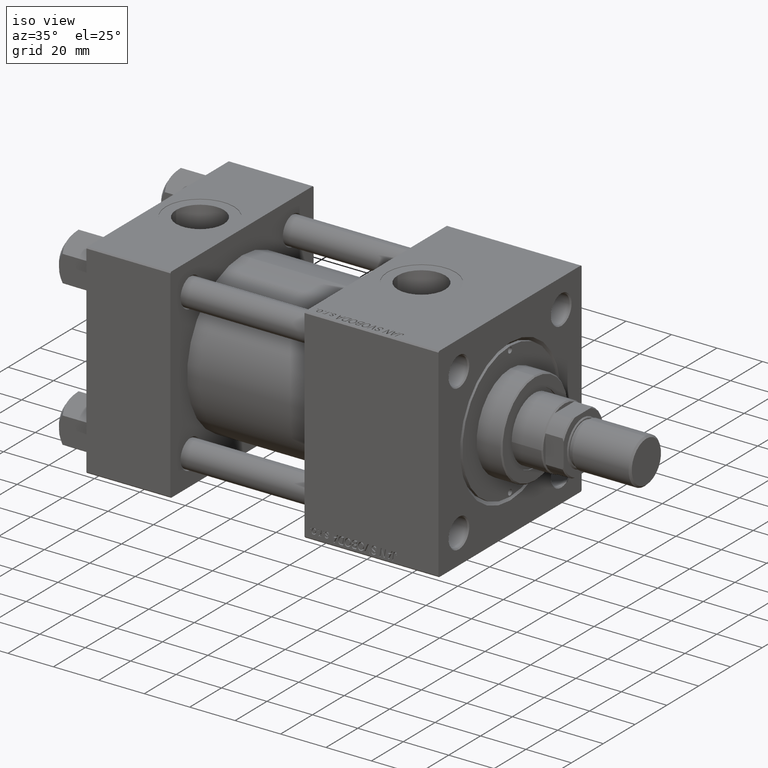
[diagram: clean part render]
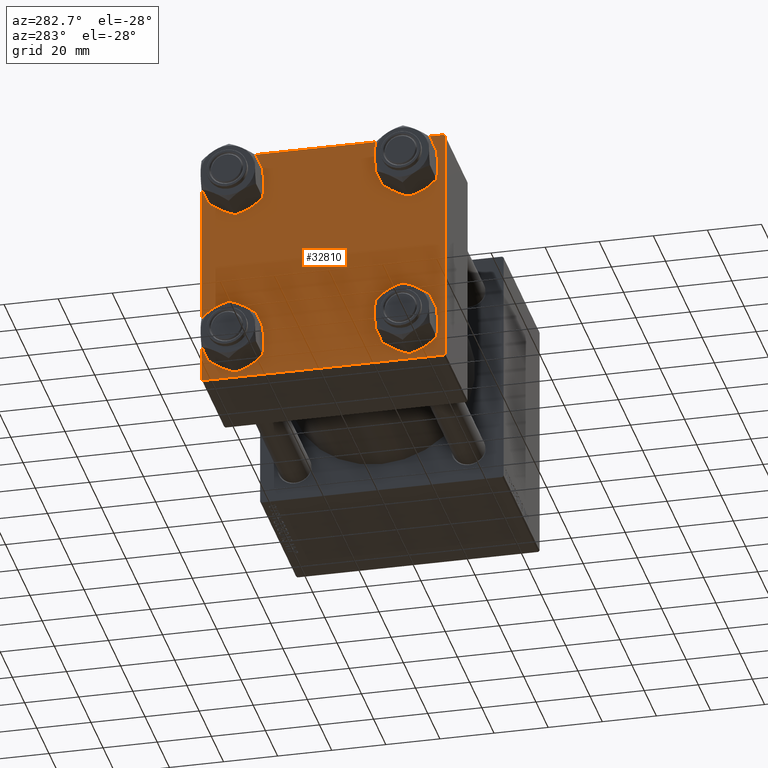
[diagram: tour spotlight — one face highlighted and labeled with its STEP entity id]
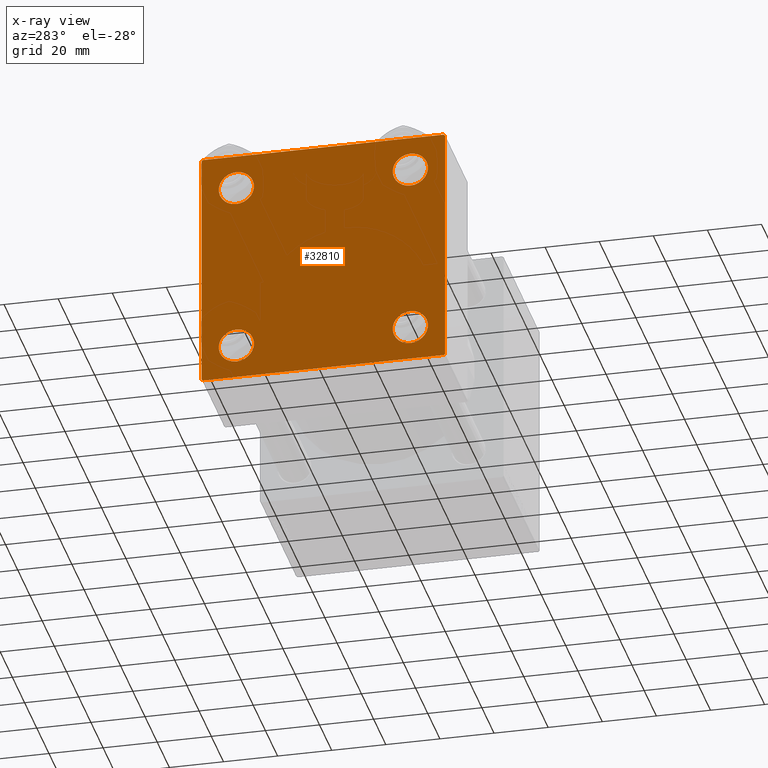
[diagram: x-ray of the same camera — body ghosted, this tour face saturated]
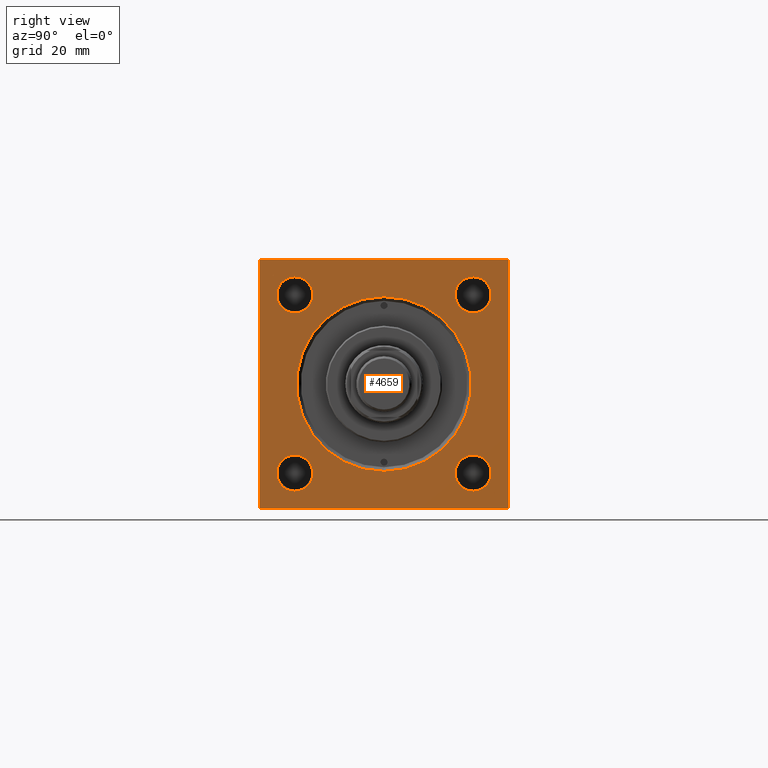
[diagram: tour spotlight — one face highlighted and labeled with its STEP entity id]
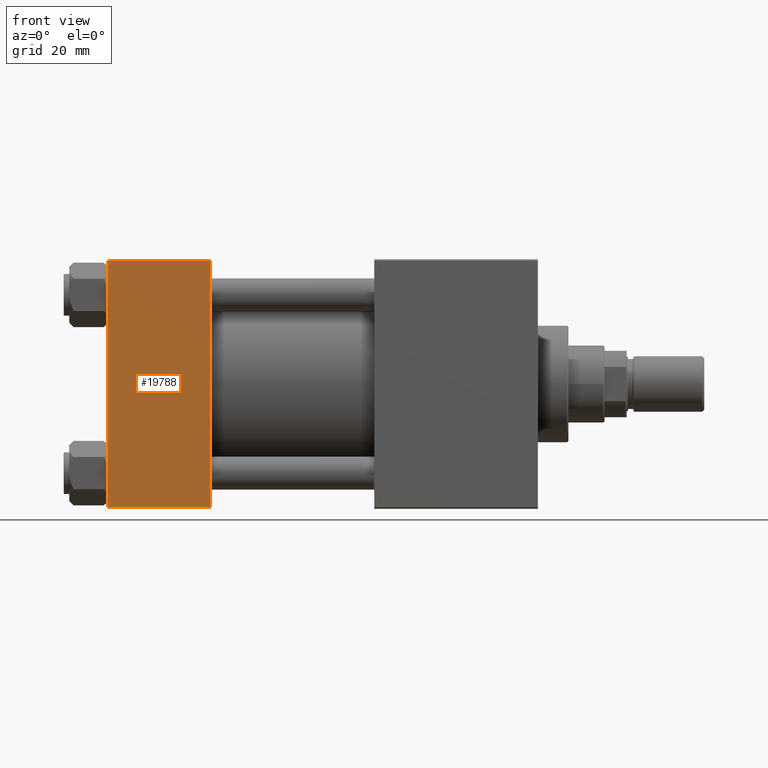
[diagram: tour spotlight — one face highlighted and labeled with its STEP entity id]
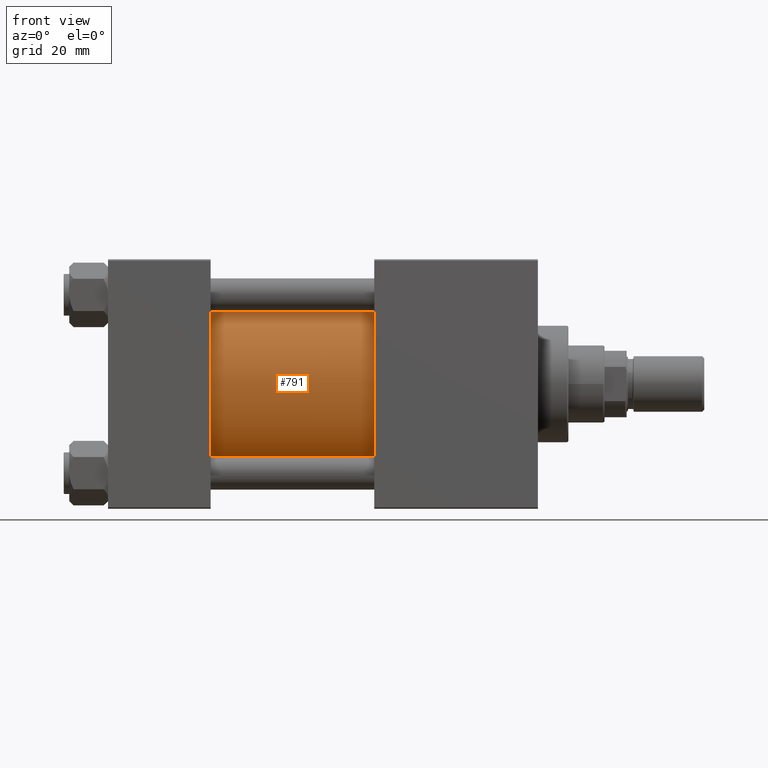
[diagram: tour spotlight — one face highlighted and labeled with its STEP entity id]
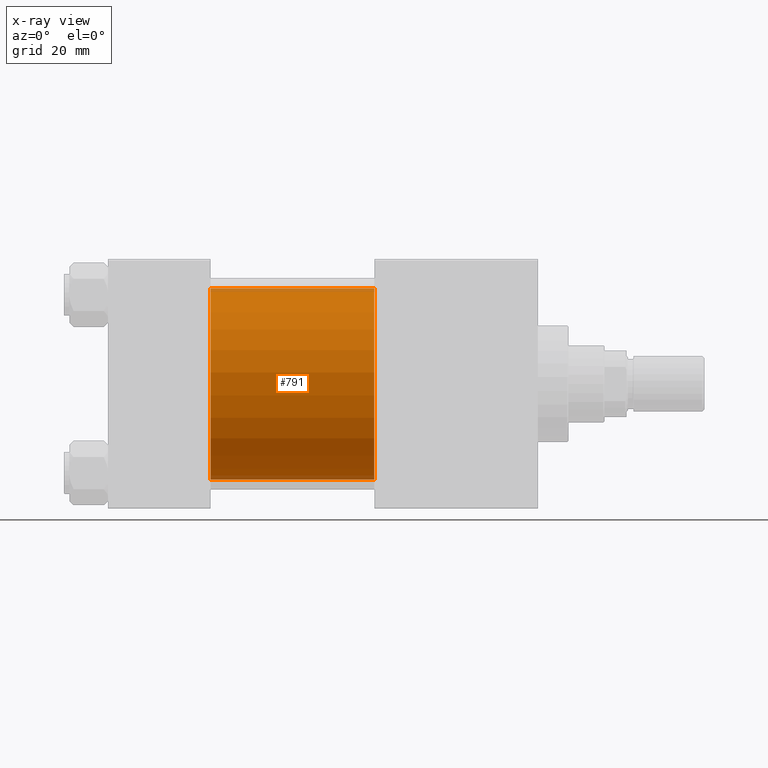
[diagram: x-ray of the same camera — body ghosted, this tour face saturated]
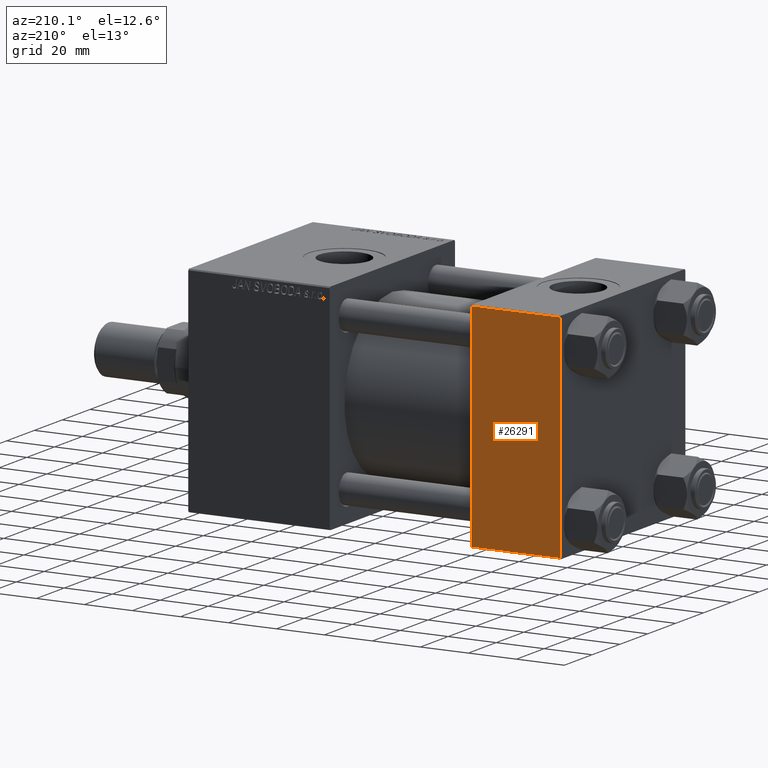
[diagram: tour spotlight — one face highlighted and labeled with its STEP entity id]
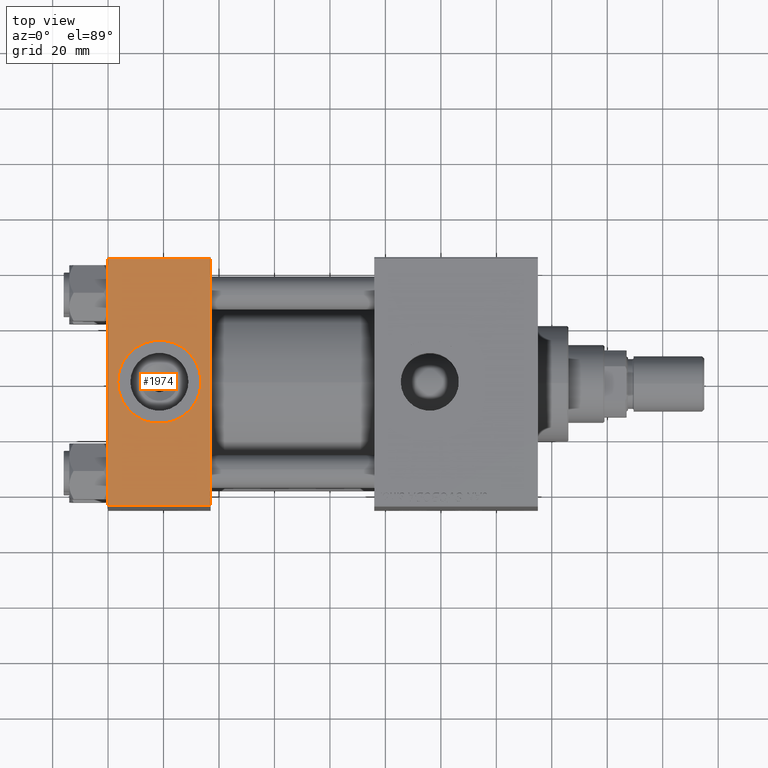
[diagram: tour spotlight — one face highlighted and labeled with its STEP entity id]
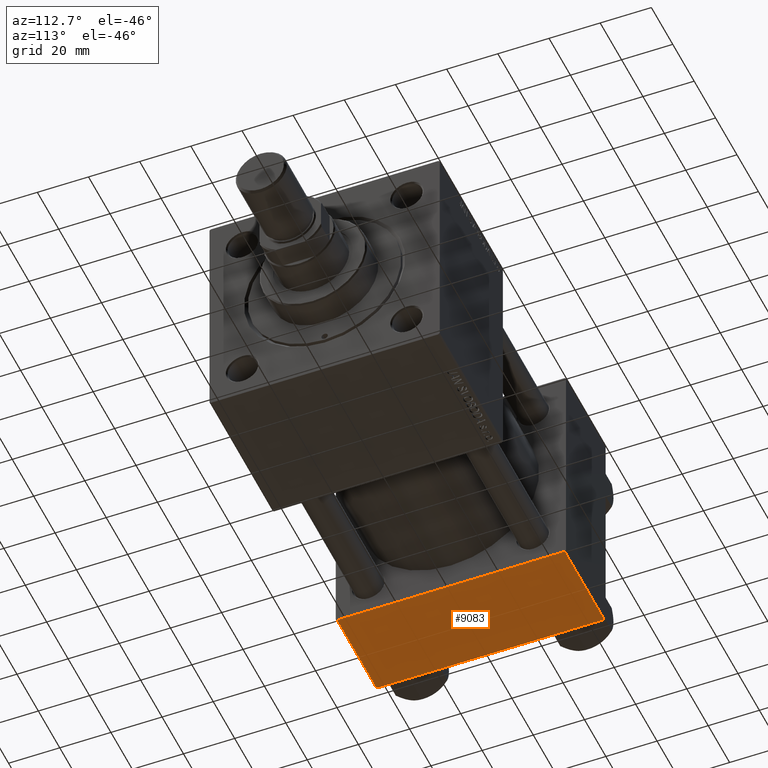
[diagram: tour spotlight — one face highlighted and labeled with its STEP entity id]
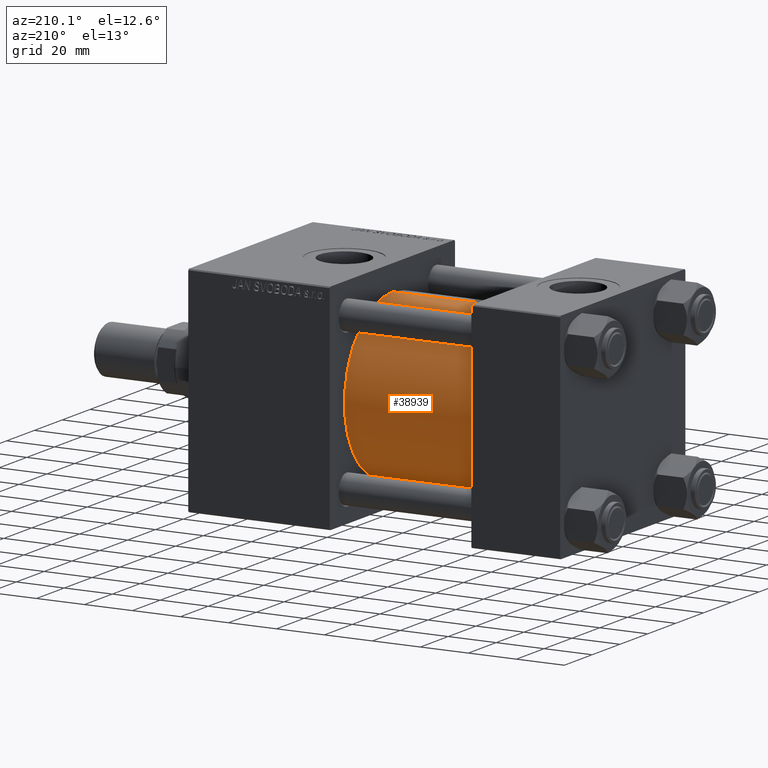
[diagram: tour spotlight — one face highlighted and labeled with its STEP entity id]
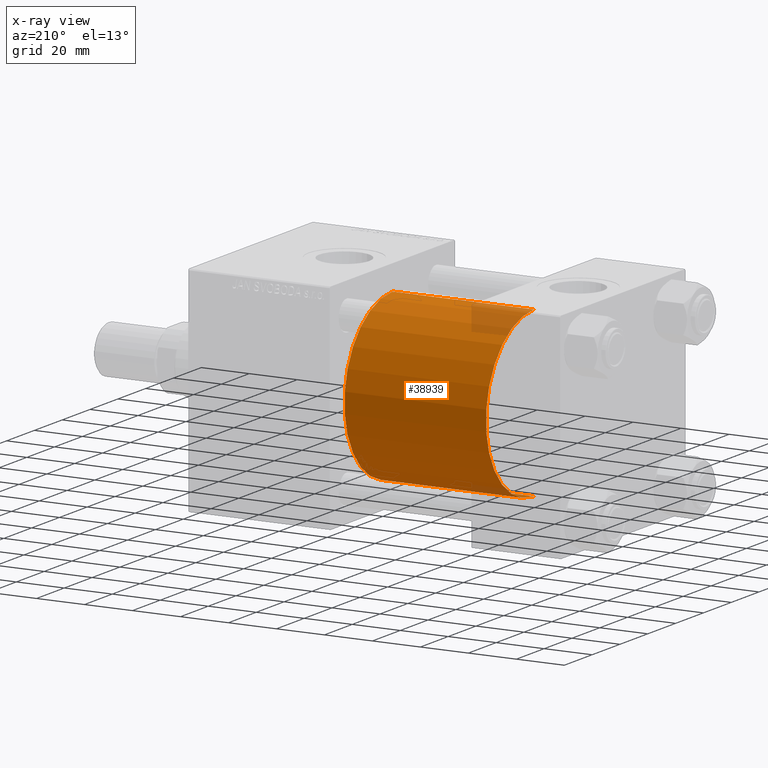
[diagram: x-ray of the same camera — body ghosted, this tour face saturated]
A machine part: a face-by-face anatomy tour. The part has 1168 B-rep faces; the first image is the clean iso view, then the 8 largest visible faces are spotlighted one at a time (largest first), each with its STEP entity span.

Face 1 — auxiliary view, entity #32810. An x-ray twin of the same camera follows (body ghosted, this face saturated) — the face is partly hidden behind the body. In plain terms, the highlighted planar face has unit normal (-1, 0, 0).
Definition (entity closure, byte-faithful):
#27 = ORIENTED_EDGE ( 'NONE', *, *, #29409, .T. ) ;
#38 = DIRECTION ( 'NONE',  ( 0.000000000000000000, 0.000000000000000000, -1.000000000000000000 ) ) ;
#129 = CARTESIAN_POINT ( 'NONE',  ( 0.000000000000000000, 44.99999999999998579, -44.99999999999998579 ) ) ;
#287 = VERTEX_POINT ( 'NONE', #47229 ) ;
#1167 = FACE_BOUND ( 'NONE', #5063, .T. ) ;
#1296 = CIRCLE ( 'NONE', #31675, 6.499999999999977796 ) ;
#1545 = ORIENTED_EDGE ( 'NONE', *, *, #6393, .T. ) ;
#1593 = LINE ( 'NONE', #129, #43041 ) ;
#1690 = CARTESIAN_POINT ( 'NONE',  ( 0.000000000000000000, 32.14999999999999147, -25.65000000000002700 ) ) ;
#2974 = AXIS2_PLACEMENT_3D ( 'NONE', #24626, #40280, #13578 ) ;
#3461 = DIRECTION ( 'NONE',  ( 0.000000000000000000, 0.000000000000000000, 1.000000000000000000 ) ) ;
#3672 = AXIS2_PLACEMENT_3D ( 'NONE', #21886, #11083, #34444 ) ;
#4027 = FACE_OUTER_BOUND ( 'NONE', #31901, .T. ) ;
#4085 = CARTESIAN_POINT ( 'NONE',  ( 0.000000000000000000, 44.99999999999998579, 45.00000000000001421 ) ) ;
#4376 = LINE ( 'NONE', #32103, #47152 ) ;
#4484 = ORIENTED_EDGE ( 'NONE', *, *, #37931, .F. ) ;
#4531 = FACE_BOUND ( 'NONE', #5034, .T. ) ;
#4672 = VERTEX_POINT ( 'NONE', #21368 ) ;
#5034 = EDGE_LOOP ( 'NONE', ( #29365, #15780 ) ) ;
#5063 = EDGE_LOOP ( 'NONE', ( #27, #24630 ) ) ;
#6275 = EDGE_CURVE ( 'NONE', #46807, #25527, #1593, .T. ) ;
#6393 = EDGE_CURVE ( 'NONE', #43069, #19581, #16088, .T. ) ;
#7778 = EDGE_CURVE ( 'NONE', #287, #4672, #4376, .T. ) ;
#7951 = DIRECTION ( 'NONE',  ( 0.000000000000000000, -1.000000000000000000, -1.541976423090495387E-16 ) ) ;
#8055 = CARTESIAN_POINT ( 'NONE',  ( 0.000000000000000000, 44.49999999999998579, -44.99999999999998579 ) ) ;
#8132 = DIRECTION ( 'NONE',  ( -0.000000000000000000, -0.7071067811865474617, -0.7071067811865474617 ) ) ;
#8133 = CARTESIAN_POINT ( 'NONE',  ( 0.000000000000000000, -32.14999999999997726, 38.65000000000003411 ) ) ;
#8184 = VECTOR ( 'NONE', #10699, 1000.000000000000114 ) ;
#8258 = DIRECTION ( 'NONE',  ( 0.000000000000000000, 7.709882115452476934E-17, -1.000000000000000000 ) ) ;
#9586 = CIRCLE ( 'NONE', #28473, 6.499999999999977796 ) ;
#9917 = DIRECTION ( 'NONE',  ( 1.000000000000000000, -0.000000000000000000, 0.000000000000000000 ) ) ;
#10699 = DIRECTION ( 'NONE',  ( 0.000000000000000000, -0.7071067811865474617, 0.7071067811865474617 ) ) ;
#11035 = CARTESIAN_POINT ( 'NONE',  ( 0.000000000000000000, -44.49999999999995737, 45.00000000000000000 ) ) ;
#11083 = DIRECTION ( 'NONE',  ( 1.000000000000000000, -0.000000000000000000, 0.000000000000000000 ) ) ;
#11262 = EDGE_CURVE ( 'NONE', #4672, #40364, #15483, .T. ) ;
#11624 = AXIS2_PLACEMENT_3D ( 'NONE', #24564, #47693, #11991 ) ;
#11804 = ORIENTED_EDGE ( 'NONE', *, *, #15340, .T. ) ;
#11991 = DIRECTION ( 'NONE',  ( -0.000000000000000000, 0.000000000000000000, 1.000000000000000000 ) ) ;
#12747 = FACE_BOUND ( 'NONE', #22995, .T. ) ;
#13264 = VERTEX_POINT ( 'NONE', #37093 ) ;
#13578 = DIRECTION ( 'NONE',  ( 0.000000000000000000, 0.000000000000000000, 1.000000000000000000 ) ) ;
#14294 = VERTEX_POINT ( 'NONE', #8133 ) ;
#14322 = DIRECTION ( 'NONE',  ( 0.000000000000000000, 0.000000000000000000, 1.000000000000000000 ) ) ;
#14373 = VECTOR ( 'NONE', #8132, 1000.000000000000114 ) ;
#15340 = EDGE_CURVE ( 'NONE', #17874, #50854, #9586, .T. ) ;
#15483 = LINE ( 'NONE', #23453, #22577 ) ;
#15780 = ORIENTED_EDGE ( 'NONE', *, *, #41004, .T. ) ;
#16088 = LINE ( 'NONE', #47180, #44659 ) ;
#16098 = CIRCLE ( 'NONE', #2974, 6.499999999999977796 ) ;
#17316 = DIRECTION ( 'NONE',  ( 1.000000000000000000, -0.000000000000000000, 0.000000000000000000 ) ) ;
#17579 = VECTOR ( 'NONE', #7951, 1000.000000000000000 ) ;
#17874 = VERTEX_POINT ( 'NONE', #1690 ) ;
#17990 = VERTEX_POINT ( 'NONE', #40231 ) ;
#19170 = CARTESIAN_POINT ( 'NONE',  ( 0.000000000000000000, 32.14999999999999147, 38.64999999999999147 ) ) ;
#19581 = VERTEX_POINT ( 'NONE', #11035 ) ;
#19589 = EDGE_CURVE ( 'NONE', #47688, #31968, #36061, .T. ) ;
#19705 = FACE_BOUND ( 'NONE', #35279, .T. ) ;
#19798 = ORIENTED_EDGE ( 'NONE', *, *, #24150, .T. ) ;
#20032 = CARTESIAN_POINT ( 'NONE',  ( 0.000000000000000000, 32.14999999999999147, -38.64999999999998437 ) ) ;
#20669 = CARTESIAN_POINT ( 'NONE',  ( 0.000000000000000000, -32.14999999999997726, 32.15000000000001279 ) ) ;
#20722 = PLANE ( 'NONE',  #11624 ) ;
#21368 = CARTESIAN_POINT ( 'NONE',  ( 0.000000000000000000, 44.99999999999998579, 44.50000000000001421 ) ) ;
#21501 = LINE ( 'NONE', #22008, #8184 ) ;
#21886 = CARTESIAN_POINT ( 'NONE',  ( 0.000000000000000000, 32.14999999999999147, 32.15000000000000568 ) ) ;
#22008 = CARTESIAN_POINT ( 'NONE',  ( 0.000000000000000000, -44.74999999999998579, -44.74999999999998579 ) ) ;
#22088 = DIRECTION ( 'NONE',  ( 0.000000000000000000, 0.000000000000000000, 1.000000000000000000 ) ) ;
#22250 = EDGE_CURVE ( 'NONE', #17990, #14294, #45826, .T. ) ;
#22577 = VECTOR ( 'NONE', #38, 1000.000000000000000 ) ;
#22995 = EDGE_LOOP ( 'NONE', ( #11804, #44505 ) ) ;
#23431 = CARTESIAN_POINT ( 'NONE',  ( 0.000000000000000000, -45.00000000000000711, 45.00000000000000000 ) ) ;
#23453 = CARTESIAN_POINT ( 'NONE',  ( 0.000000000000000000, 44.99999999999998579, 45.00000000000001421 ) ) ;
#24150 = EDGE_CURVE ( 'NONE', #25527, #13264, #21501, .T. ) ;
#24198 = CIRCLE ( 'NONE', #3672, 6.499999999999977796 ) ;
#24564 = CARTESIAN_POINT ( 'NONE',  ( 0.000000000000000000, 0.000000000000000000, 0.000000000000000000 ) ) ;
#24626 = CARTESIAN_POINT ( 'NONE',  ( 0.000000000000000000, 32.14999999999999147, -32.15000000000000568 ) ) ;
#24630 = ORIENTED_EDGE ( 'NONE', *, *, #22250, .T. ) ;
#24901 = VECTOR ( 'NONE', #8258, 1000.000000000000000 ) ;
#25527 = VERTEX_POINT ( 'NONE', #49668 ) ;
#26109 = CARTESIAN_POINT ( 'NONE',  ( 0.000000000000000000, -32.14999999999997726, -32.15000000000001279 ) ) ;
#26720 = DIRECTION ( 'NONE',  ( 1.000000000000000000, -0.000000000000000000, 0.000000000000000000 ) ) ;
#27024 = CARTESIAN_POINT ( 'NONE',  ( 0.000000000000000000, -32.14999999999997726, -32.15000000000001279 ) ) ;
#27660 = CARTESIAN_POINT ( 'NONE',  ( 0.000000000000000000, 44.74999999999998579, -44.74999999999998579 ) ) ;
#27744 = ORIENTED_EDGE ( 'NONE', *, *, #6275, .T. ) ;
#28473 = AXIS2_PLACEMENT_3D ( 'NONE', #30183, #38643, #3461 ) ;
#29101 = DIRECTION ( 'NONE',  ( -0.000000000000000000, 0.7071067811865425767, 0.7071067811865524577 ) ) ;
#29211 = CARTESIAN_POINT ( 'NONE',  ( 0.000000000000000000, 44.99999999999998579, -44.49999999999995737 ) ) ;
#29365 = ORIENTED_EDGE ( 'NONE', *, *, #19589, .T. ) ;
#29409 = EDGE_CURVE ( 'NONE', #14294, #17990, #29662, .T. ) ;
#29662 = CIRCLE ( 'NONE', #42800, 6.500000000000019540 ) ;
#30183 = CARTESIAN_POINT ( 'NONE',  ( 0.000000000000000000, 32.14999999999999147, -32.15000000000000568 ) ) ;
#31675 = AXIS2_PLACEMENT_3D ( 'NONE', #26109, #9917, #49992 ) ;
#31901 = EDGE_LOOP ( 'NONE', ( #40198, #47148, #27744, #19798, #4484, #1545, #35923, #48079 ) ) ;
#31968 = VERTEX_POINT ( 'NONE', #39153 ) ;
#32103 = CARTESIAN_POINT ( 'NONE',  ( 0.000000000000000000, 44.74999999999999289, 44.74999999999999289 ) ) ;
#32810 = ADVANCED_FACE ( 'NONE', ( #1167, #19705, #12747, #4531, #4027 ), #20722, .T. ) ;
#33391 = CARTESIAN_POINT ( 'NONE',  ( 0.000000000000000000, -32.14999999999997726, -38.64999999999999147 ) ) ;
#34444 = DIRECTION ( 'NONE',  ( 0.000000000000000000, 0.000000000000000000, 1.000000000000000000 ) ) ;
#34942 = EDGE_CURVE ( 'NONE', #49226, #40803, #38753, .T. ) ;
#35099 = DIRECTION ( 'NONE',  ( 0.000000000000000000, -1.000000000000000000, -1.541976423090495633E-16 ) ) ;
#35279 = EDGE_LOOP ( 'NONE', ( #36248, #48448 ) ) ;
#35454 = DIRECTION ( 'NONE',  ( 0.000000000000000000, 0.7071067811865474617, -0.7071067811865474617 ) ) ;
#35923 = ORIENTED_EDGE ( 'NONE', *, *, #38223, .F. ) ;
#36061 = CIRCLE ( 'NONE', #42643, 6.499999999999977796 ) ;
#36248 = ORIENTED_EDGE ( 'NONE', *, *, #44037, .T. ) ;
#36583 = DIRECTION ( 'NONE',  ( 0.000000000000000000, 0.000000000000000000, 1.000000000000000000 ) ) ;
#37093 = CARTESIAN_POINT ( 'NONE',  ( 0.000000000000000000, -45.00000000000000000, -44.49999999999995737 ) ) ;
#37931 = EDGE_CURVE ( 'NONE', #43069, #13264, #46304, .T. ) ;
#38049 = DIRECTION ( 'NONE',  ( 0.000000000000000000, 0.000000000000000000, 1.000000000000000000 ) ) ;
#38223 = EDGE_CURVE ( 'NONE', #287, #19581, #47254, .T. ) ;
#38259 = CARTESIAN_POINT ( 'NONE',  ( 0.000000000000000000, 32.14999999999999147, 32.15000000000000568 ) ) ;
#38643 = DIRECTION ( 'NONE',  ( 1.000000000000000000, -0.000000000000000000, 0.000000000000000000 ) ) ;
#38753 = CIRCLE ( 'NONE', #43676, 6.499999999999977796 ) ;
#39153 = CARTESIAN_POINT ( 'NONE',  ( 0.000000000000000000, 32.14999999999999147, 25.65000000000002700 ) ) ;
#40198 = ORIENTED_EDGE ( 'NONE', *, *, #11262, .T. ) ;
#40231 = CARTESIAN_POINT ( 'NONE',  ( 0.000000000000000000, -32.14999999999997726, 25.64999999999999147 ) ) ;
#40280 = DIRECTION ( 'NONE',  ( 1.000000000000000000, -0.000000000000000000, 0.000000000000000000 ) ) ;
#40364 = VERTEX_POINT ( 'NONE', #29211 ) ;
#40385 = CARTESIAN_POINT ( 'NONE',  ( 0.000000000000000000, -32.14999999999997726, -25.65000000000003411 ) ) ;
#40803 = VERTEX_POINT ( 'NONE', #40385 ) ;
#41004 = EDGE_CURVE ( 'NONE', #31968, #47688, #24198, .T. ) ;
#41040 = DIRECTION ( 'NONE',  ( 1.000000000000000000, -0.000000000000000000, 0.000000000000000000 ) ) ;
#41554 = CARTESIAN_POINT ( 'NONE',  ( 0.000000000000000000, -32.14999999999997726, 32.15000000000001279 ) ) ;
#41910 = DIRECTION ( 'NONE',  ( 1.000000000000000000, -0.000000000000000000, 0.000000000000000000 ) ) ;
#41958 = EDGE_CURVE ( 'NONE', #40364, #46807, #47680, .T. ) ;
#42556 = AXIS2_PLACEMENT_3D ( 'NONE', #20669, #17316, #36583 ) ;
#42643 = AXIS2_PLACEMENT_3D ( 'NONE', #38259, #26720, #22088 ) ;
#42800 = AXIS2_PLACEMENT_3D ( 'NONE', #41554, #41040, #14322 ) ;
#43041 = VECTOR ( 'NONE', #35099, 1000.000000000000000 ) ;
#43069 = VERTEX_POINT ( 'NONE', #43772 ) ;
#43619 = EDGE_CURVE ( 'NONE', #50854, #17874, #16098, .T. ) ;
#43676 = AXIS2_PLACEMENT_3D ( 'NONE', #27024, #41910, #38049 ) ;
#43772 = CARTESIAN_POINT ( 'NONE',  ( 0.000000000000000000, -45.00000000000000711, 44.49999999999997158 ) ) ;
#44037 = EDGE_CURVE ( 'NONE', #40803, #49226, #1296, .T. ) ;
#44505 = ORIENTED_EDGE ( 'NONE', *, *, #43619, .T. ) ;
#44659 = VECTOR ( 'NONE', #29101, 1000.000000000000114 ) ;
#45826 = CIRCLE ( 'NONE', #42556, 6.500000000000019540 ) ;
#46304 = LINE ( 'NONE', #23431, #24901 ) ;
#46807 = VERTEX_POINT ( 'NONE', #8055 ) ;
#47148 = ORIENTED_EDGE ( 'NONE', *, *, #41958, .T. ) ;
#47152 = VECTOR ( 'NONE', #35454, 1000.000000000000114 ) ;
#47180 = CARTESIAN_POINT ( 'NONE',  ( -0.000000000000000000, -44.75000000000029843, 44.74999999999967315 ) ) ;
#47229 = CARTESIAN_POINT ( 'NONE',  ( 0.000000000000000000, 44.49999999999998579, 45.00000000000001421 ) ) ;
#47254 = LINE ( 'NONE', #4085, #17579 ) ;
#47680 = LINE ( 'NONE', #27660, #14373 ) ;
#47688 = VERTEX_POINT ( 'NONE', #19170 ) ;
#47693 = DIRECTION ( 'NONE',  ( -1.000000000000000000, 0.000000000000000000, -0.000000000000000000 ) ) ;
#48079 = ORIENTED_EDGE ( 'NONE', *, *, #7778, .T. ) ;
#48448 = ORIENTED_EDGE ( 'NONE', *, *, #34942, .T. ) ;
#49226 = VERTEX_POINT ( 'NONE', #33391 ) ;
#49668 = CARTESIAN_POINT ( 'NONE',  ( 0.000000000000000000, -44.49999999999995737, -45.00000000000000000 ) ) ;
#49992 = DIRECTION ( 'NONE',  ( 0.000000000000000000, 0.000000000000000000, 1.000000000000000000 ) ) ;
#50854 = VERTEX_POINT ( 'NONE', #20032 ) ;

Face 2 — right view, entity #4659. In plain terms, the highlighted planar face has unit normal (-1, 0, 0).
Definition (entity closure, byte-faithful):
#563 = CIRCLE ( 'NONE', #3895, 6.500000000000033751 ) ;
#982 = EDGE_CURVE ( 'NONE', #44132, #43768, #8379, .T. ) ;
#1026 = VERTEX_POINT ( 'NONE', #1586 ) ;
#1180 = VERTEX_POINT ( 'NONE', #37173 ) ;
#1311 = AXIS2_PLACEMENT_3D ( 'NONE', #37119, #24558, #20713 ) ;
#1434 = DIRECTION ( 'NONE',  ( 0.000000000000000000, -1.000000000000000000, 0.000000000000000000 ) ) ;
#1492 = EDGE_LOOP ( 'NONE', ( #15028, #25881 ) ) ;
#1496 = VECTOR ( 'NONE', #1434, 1000.000000000000000 ) ;
#1586 = CARTESIAN_POINT ( 'NONE',  ( 155.0000000000000000, 32.14999999999999147, -38.65000000000004832 ) ) ;
#1784 = EDGE_CURVE ( 'NONE', #43768, #44132, #7588, .T. ) ;
#1818 = ORIENTED_EDGE ( 'NONE', *, *, #36235, .T. ) ;
#1828 = FACE_BOUND ( 'NONE', #28569, .T. ) ;
#1868 = VERTEX_POINT ( 'NONE', #13435 ) ;
#2584 = FACE_BOUND ( 'NONE', #19517, .T. ) ;
#2711 = VERTEX_POINT ( 'NONE', #44033 ) ;
#2754 = CARTESIAN_POINT ( 'NONE',  ( 155.0000000000000000, -44.99999999999999289, -44.49999999999991473 ) ) ;
#2768 = AXIS2_PLACEMENT_3D ( 'NONE', #30335, #22386, #45006 ) ;
#3170 = EDGE_CURVE ( 'NONE', #17636, #19933, #7711, .T. ) ;
#3693 = DIRECTION ( 'NONE',  ( 0.000000000000000000, 0.000000000000000000, -1.000000000000000000 ) ) ;
#3895 = AXIS2_PLACEMENT_3D ( 'NONE', #22235, #41763, #40990 ) ;
#3972 = CIRCLE ( 'NONE', #39210, 31.50000000000000000 ) ;
#4067 = LINE ( 'NONE', #12027, #16646 ) ;
#4372 = DIRECTION ( 'NONE',  ( 0.000000000000000000, 7.709882115452478166E-17, -1.000000000000000000 ) ) ;
#4659 = ADVANCED_FACE ( 'NONE', ( #2584, #10055, #25996, #1828, #33673, #22125 ), #25740, .F. ) ;
#4666 = VECTOR ( 'NONE', #40158, 1000.000000000000000 ) ;
#5467 = DIRECTION ( 'NONE',  ( 0.000000000000000000, 0.000000000000000000, 1.000000000000000000 ) ) ;
#5982 = CARTESIAN_POINT ( 'NONE',  ( 155.0000000000000000, -32.15000000000001279, -32.15000000000000568 ) ) ;
#6027 = CARTESIAN_POINT ( 'NONE',  ( 155.0000000000000000, -44.49999999999992895, -45.00000000000000000 ) ) ;
#6091 = CIRCLE ( 'NONE', #34789, 31.50000000000000000 ) ;
#6428 = CARTESIAN_POINT ( 'NONE',  ( 155.0000000000000000, 32.14999999999999147, 38.65000000000003411 ) ) ;
#6583 = EDGE_LOOP ( 'NONE', ( #27904, #20351 ) ) ;
#6954 = DIRECTION ( 'NONE',  ( 0.000000000000000000, 0.000000000000000000, 1.000000000000000000 ) ) ;
#7218 = DIRECTION ( 'NONE',  ( 0.000000000000000000, -0.7071067811865474617, 0.7071067811865474617 ) ) ;
#7471 = EDGE_CURVE ( 'NONE', #43026, #1026, #13515, .T. ) ;
#7588 = CIRCLE ( 'NONE', #13327, 6.500000000000033751 ) ;
#7679 = VERTEX_POINT ( 'NONE', #48903 ) ;
#7711 = LINE ( 'NONE', #35180, #21585 ) ;
#8379 = CIRCLE ( 'NONE', #8414, 6.500000000000033751 ) ;
#8414 = AXIS2_PLACEMENT_3D ( 'NONE', #33688, #49376, #5467 ) ;
#9399 = VERTEX_POINT ( 'NONE', #14805 ) ;
#9481 = CARTESIAN_POINT ( 'NONE',  ( 155.0000000000000000, 45.00000000000001421, 44.49999999999997158 ) ) ;
#9611 = ORIENTED_EDGE ( 'NONE', *, *, #3170, .T. ) ;
#9840 = ORIENTED_EDGE ( 'NONE', *, *, #7471, .T. ) ;
#10055 = FACE_BOUND ( 'NONE', #42501, .T. ) ;
#10757 = DIRECTION ( 'NONE',  ( 0.000000000000000000, 0.000000000000000000, 1.000000000000000000 ) ) ;
#10857 = VECTOR ( 'NONE', #3693, 1000.000000000000000 ) ;
#10985 = DIRECTION ( 'NONE',  ( 0.000000000000000000, 0.000000000000000000, 1.000000000000000000 ) ) ;
#11512 = CARTESIAN_POINT ( 'NONE',  ( 155.0000000000000000, 0.000000000000000000, 0.000000000000000000 ) ) ;
#11826 = LINE ( 'NONE', #39555, #46102 ) ;
#12027 = CARTESIAN_POINT ( 'NONE',  ( 155.0000000000000000, -45.00000000000000000, 44.49999999999995737 ) ) ;
#12284 = DIRECTION ( 'NONE',  ( -1.000000000000000000, -0.000000000000000000, -0.000000000000000000 ) ) ;
#13020 = LINE ( 'NONE', #24840, #39051 ) ;
#13327 = AXIS2_PLACEMENT_3D ( 'NONE', #5982, #21655, #17551 ) ;
#13435 = CARTESIAN_POINT ( 'NONE',  ( 155.0000000000000000, -45.00000000000000000, 44.49999999999995737 ) ) ;
#13515 = CIRCLE ( 'NONE', #45535, 6.500000000000033751 ) ;
#14209 = DIRECTION ( 'NONE',  ( -1.000000000000000000, -0.000000000000000000, -0.000000000000000000 ) ) ;
#14584 = DIRECTION ( 'NONE',  ( -1.000000000000000000, -0.000000000000000000, -0.000000000000000000 ) ) ;
#14805 = CARTESIAN_POINT ( 'NONE',  ( 155.0000000000000000, -44.49999999999994316, 44.99999999999998579 ) ) ;
#15028 = ORIENTED_EDGE ( 'NONE', *, *, #20660, .T. ) ;
#15180 = VECTOR ( 'NONE', #45324, 1000.000000000000000 ) ;
#15215 = EDGE_CURVE ( 'NONE', #29115, #2711, #23484, .T. ) ;
#15466 = EDGE_CURVE ( 'NONE', #19933, #9399, #44030, .T. ) ;
#16646 = VECTOR ( 'NONE', #27205, 1000.000000000000114 ) ;
#16811 = EDGE_CURVE ( 'NONE', #43600, #21992, #563, .T. ) ;
#16917 = CARTESIAN_POINT ( 'NONE',  ( 155.0000000000000000, 32.14999999999999147, 32.15000000000000568 ) ) ;
#17127 = ORIENTED_EDGE ( 'NONE', *, *, #33757, .T. ) ;
#17551 = DIRECTION ( 'NONE',  ( 0.000000000000000000, 0.000000000000000000, 1.000000000000000000 ) ) ;
#17636 = VERTEX_POINT ( 'NONE', #9481 ) ;
#19395 = ORIENTED_EDGE ( 'NONE', *, *, #21862, .F. ) ;
#19517 = EDGE_LOOP ( 'NONE', ( #41510, #50434 ) ) ;
#19933 = VERTEX_POINT ( 'NONE', #24495 ) ;
#20351 = ORIENTED_EDGE ( 'NONE', *, *, #1784, .T. ) ;
#20660 = EDGE_CURVE ( 'NONE', #7679, #50804, #3972, .T. ) ;
#20713 = DIRECTION ( 'NONE',  ( 0.000000000000000000, 0.000000000000000000, 1.000000000000000000 ) ) ;
#20913 = CARTESIAN_POINT ( 'NONE',  ( 155.0000000000000000, 45.00000000000001421, 45.00000000000000000 ) ) ;
#21378 = EDGE_CURVE ( 'NONE', #1026, #43026, #31833, .T. ) ;
#21585 = VECTOR ( 'NONE', #7218, 1000.000000000000114 ) ;
#21655 = DIRECTION ( 'NONE',  ( -1.000000000000000000, -0.000000000000000000, -0.000000000000000000 ) ) ;
#21862 = EDGE_CURVE ( 'NONE', #41804, #35817, #29195, .T. ) ;
#21992 = VERTEX_POINT ( 'NONE', #34304 ) ;
#22125 = FACE_OUTER_BOUND ( 'NONE', #24566, .T. ) ;
#22235 = CARTESIAN_POINT ( 'NONE',  ( 155.0000000000000000, -32.14999999999999147, 32.14999999999999147 ) ) ;
#22386 = DIRECTION ( 'NONE',  ( -1.000000000000000000, 0.000000000000000000, -0.000000000000000000 ) ) ;
#22871 = DIRECTION ( 'NONE',  ( -1.000000000000000000, -0.000000000000000000, -0.000000000000000000 ) ) ;
#23304 = CARTESIAN_POINT ( 'NONE',  ( 155.0000000000000000, 32.14999999999999147, -25.64999999999997016 ) ) ;
#23484 = CIRCLE ( 'NONE', #1311, 6.500000000000026645 ) ;
#23494 = CARTESIAN_POINT ( 'NONE',  ( 155.0000000000000000, 32.14999999999999147, -32.15000000000000568 ) ) ;
#24179 = ORIENTED_EDGE ( 'NONE', *, *, #15466, .T. ) ;
#24495 = CARTESIAN_POINT ( 'NONE',  ( 155.0000000000000000, 44.49999999999998579, 45.00000000000000000 ) ) ;
#24558 = DIRECTION ( 'NONE',  ( -1.000000000000000000, -0.000000000000000000, -0.000000000000000000 ) ) ;
#24566 = EDGE_LOOP ( 'NONE', ( #17127, #43466, #19395, #25485, #31201, #9611, #24179, #1818 ) ) ;
#24840 = CARTESIAN_POINT ( 'NONE',  ( 155.0000000000000000, 45.00000000000001421, -44.50000000000000000 ) ) ;
#25485 = ORIENTED_EDGE ( 'NONE', *, *, #44622, .T. ) ;
#25740 = PLANE ( 'NONE',  #2768 ) ;
#25881 = ORIENTED_EDGE ( 'NONE', *, *, #40203, .T. ) ;
#25907 = CARTESIAN_POINT ( 'NONE',  ( 155.0000000000000000, 0.000000000000000000, 0.000000000000000000 ) ) ;
#25996 = FACE_BOUND ( 'NONE', #6583, .T. ) ;
#26293 = CARTESIAN_POINT ( 'NONE',  ( 155.0000000000000000, -32.14999999999999147, 32.14999999999999147 ) ) ;
#26316 = EDGE_CURVE ( 'NONE', #21992, #43600, #43500, .T. ) ;
#26397 = CARTESIAN_POINT ( 'NONE',  ( 155.0000000000000000, 44.50000000000001421, -45.00000000000000000 ) ) ;
#26420 = CIRCLE ( 'NONE', #39522, 6.500000000000026645 ) ;
#27077 = LINE ( 'NONE', #42735, #10857 ) ;
#27205 = DIRECTION ( 'NONE',  ( -0.000000000000000000, -0.7071067811865474617, -0.7071067811865474617 ) ) ;
#27356 = DIRECTION ( 'NONE',  ( 0.000000000000000000, 0.000000000000000000, 1.000000000000000000 ) ) ;
#27904 = ORIENTED_EDGE ( 'NONE', *, *, #982, .T. ) ;
#28434 = CARTESIAN_POINT ( 'NONE',  ( 155.0000000000000000, 45.00000000000001421, -45.00000000000000000 ) ) ;
#28569 = EDGE_LOOP ( 'NONE', ( #36136, #9840 ) ) ;
#29115 = VERTEX_POINT ( 'NONE', #6428 ) ;
#29195 = LINE ( 'NONE', #28434, #1496 ) ;
#29304 = EDGE_CURVE ( 'NONE', #2711, #29115, #26420, .T. ) ;
#29387 = AXIS2_PLACEMENT_3D ( 'NONE', #46247, #22871, #6954 ) ;
#30335 = CARTESIAN_POINT ( 'NONE',  ( 155.0000000000000000, 0.000000000000000000, 0.000000000000000000 ) ) ;
#31201 = ORIENTED_EDGE ( 'NONE', *, *, #34653, .F. ) ;
#31833 = CIRCLE ( 'NONE', #29387, 6.500000000000033751 ) ;
#32007 = ORIENTED_EDGE ( 'NONE', *, *, #26316, .T. ) ;
#32333 = CARTESIAN_POINT ( 'NONE',  ( 155.0000000000000000, -32.14999999999999147, 38.65000000000002700 ) ) ;
#32950 = ORIENTED_EDGE ( 'NONE', *, *, #16811, .T. ) ;
#33673 = FACE_BOUND ( 'NONE', #1492, .T. ) ;
#33688 = CARTESIAN_POINT ( 'NONE',  ( 155.0000000000000000, -32.15000000000001279, -32.15000000000000568 ) ) ;
#33757 = EDGE_CURVE ( 'NONE', #1868, #41756, #11826, .T. ) ;
#34304 = CARTESIAN_POINT ( 'NONE',  ( 155.0000000000000000, -32.14999999999999147, 25.64999999999995595 ) ) ;
#34653 = EDGE_CURVE ( 'NONE', #17636, #1180, #27077, .T. ) ;
#34789 = AXIS2_PLACEMENT_3D ( 'NONE', #11512, #45959, #10757 ) ;
#35065 = CARTESIAN_POINT ( 'NONE',  ( 155.0000000000000000, -32.15000000000001279, -38.65000000000004832 ) ) ;
#35180 = CARTESIAN_POINT ( 'NONE',  ( 155.0000000000000000, 44.49999999999998579, 45.00000000000000000 ) ) ;
#35309 = AXIS2_PLACEMENT_3D ( 'NONE', #26293, #14209, #41946 ) ;
#35405 = DIRECTION ( 'NONE',  ( 0.000000000000000000, 0.000000000000000000, 1.000000000000000000 ) ) ;
#35795 = DIRECTION ( 'NONE',  ( -1.000000000000000000, -0.000000000000000000, -0.000000000000000000 ) ) ;
#35817 = VERTEX_POINT ( 'NONE', #50145 ) ;
#36136 = ORIENTED_EDGE ( 'NONE', *, *, #21378, .T. ) ;
#36235 = EDGE_CURVE ( 'NONE', #9399, #1868, #4067, .T. ) ;
#36648 = DIRECTION ( 'NONE',  ( -0.000000000000000000, 0.7071067811865474617, 0.7071067811865474617 ) ) ;
#37119 = CARTESIAN_POINT ( 'NONE',  ( 155.0000000000000000, 32.14999999999999147, 32.15000000000000568 ) ) ;
#37173 = CARTESIAN_POINT ( 'NONE',  ( 155.0000000000000000, 45.00000000000001421, -44.49999999999997158 ) ) ;
#38282 = CARTESIAN_POINT ( 'NONE',  ( 155.0000000000000000, 3.857637417314162689E-15, 31.50000000000000000 ) ) ;
#39051 = VECTOR ( 'NONE', #36648, 1000.000000000000114 ) ;
#39210 = AXIS2_PLACEMENT_3D ( 'NONE', #25907, #14584, #10985 ) ;
#39522 = AXIS2_PLACEMENT_3D ( 'NONE', #16917, #12284, #35405 ) ;
#39555 = CARTESIAN_POINT ( 'NONE',  ( 155.0000000000000000, -45.00000000000000000, 44.99999999999998579 ) ) ;
#40158 = DIRECTION ( 'NONE',  ( 0.000000000000000000, -1.000000000000000000, -1.541976423090495140E-16 ) ) ;
#40203 = EDGE_CURVE ( 'NONE', #50804, #7679, #6091, .T. ) ;
#40578 = EDGE_CURVE ( 'NONE', #41756, #35817, #41200, .T. ) ;
#40990 = DIRECTION ( 'NONE',  ( 0.000000000000000000, 0.000000000000000000, 1.000000000000000000 ) ) ;
#41200 = LINE ( 'NONE', #6027, #15180 ) ;
#41307 = CARTESIAN_POINT ( 'NONE',  ( 155.0000000000000000, -32.15000000000001279, -25.64999999999997016 ) ) ;
#41510 = ORIENTED_EDGE ( 'NONE', *, *, #29304, .T. ) ;
#41756 = VERTEX_POINT ( 'NONE', #2754 ) ;
#41763 = DIRECTION ( 'NONE',  ( -1.000000000000000000, -0.000000000000000000, -0.000000000000000000 ) ) ;
#41804 = VERTEX_POINT ( 'NONE', #26397 ) ;
#41946 = DIRECTION ( 'NONE',  ( 0.000000000000000000, 0.000000000000000000, 1.000000000000000000 ) ) ;
#42501 = EDGE_LOOP ( 'NONE', ( #32007, #32950 ) ) ;
#42735 = CARTESIAN_POINT ( 'NONE',  ( 155.0000000000000000, 45.00000000000001421, 45.00000000000000000 ) ) ;
#43026 = VERTEX_POINT ( 'NONE', #23304 ) ;
#43466 = ORIENTED_EDGE ( 'NONE', *, *, #40578, .T. ) ;
#43500 = CIRCLE ( 'NONE', #35309, 6.500000000000033751 ) ;
#43600 = VERTEX_POINT ( 'NONE', #32333 ) ;
#43768 = VERTEX_POINT ( 'NONE', #41307 ) ;
#44030 = LINE ( 'NONE', #20913, #4666 ) ;
#44033 = CARTESIAN_POINT ( 'NONE',  ( 155.0000000000000000, 32.14999999999999147, 25.64999999999997726 ) ) ;
#44132 = VERTEX_POINT ( 'NONE', #35065 ) ;
#44622 = EDGE_CURVE ( 'NONE', #41804, #1180, #13020, .T. ) ;
#45006 = DIRECTION ( 'NONE',  ( -0.000000000000000000, 0.000000000000000000, 1.000000000000000000 ) ) ;
#45324 = DIRECTION ( 'NONE',  ( 0.000000000000000000, 0.7071067811865524577, -0.7071067811865426878 ) ) ;
#45535 = AXIS2_PLACEMENT_3D ( 'NONE', #23494, #35795, #27356 ) ;
#45959 = DIRECTION ( 'NONE',  ( -1.000000000000000000, -0.000000000000000000, -0.000000000000000000 ) ) ;
#46102 = VECTOR ( 'NONE', #4372, 1000.000000000000000 ) ;
#46247 = CARTESIAN_POINT ( 'NONE',  ( 155.0000000000000000, 32.14999999999999147, -32.15000000000000568 ) ) ;
#48903 = CARTESIAN_POINT ( 'NONE',  ( 155.0000000000000000, 0.000000000000000000, -31.50000000000000000 ) ) ;
#49376 = DIRECTION ( 'NONE',  ( -1.000000000000000000, -0.000000000000000000, -0.000000000000000000 ) ) ;
#50145 = CARTESIAN_POINT ( 'NONE',  ( 155.0000000000000000, -44.49999999999990052, -45.00000000000000000 ) ) ;
#50434 = ORIENTED_EDGE ( 'NONE', *, *, #15215, .T. ) ;
#50804 = VERTEX_POINT ( 'NONE', #38282 ) ;

Face 3 — front view, entity #19788. In plain terms, the highlighted planar face has unit normal (0, 1, 0).
Definition (entity closure, byte-faithful):
#2685 = DIRECTION ( 'NONE',  ( 0.000000000000000000, -7.709882115452478166E-17, 1.000000000000000000 ) ) ;
#3712 = CARTESIAN_POINT ( 'NONE',  ( 37.00000000000000000, -45.00000000000000711, 45.00000000000000000 ) ) ;
#4934 = ORIENTED_EDGE ( 'NONE', *, *, #11954, .T. ) ;
#8258 = DIRECTION ( 'NONE',  ( 0.000000000000000000, 7.709882115452476934E-17, -1.000000000000000000 ) ) ;
#8535 = DIRECTION ( 'NONE',  ( 0.000000000000000000, 7.709882115452476934E-17, -1.000000000000000000 ) ) ;
#10627 = ORIENTED_EDGE ( 'NONE', *, *, #18098, .F. ) ;
#11954 = EDGE_CURVE ( 'NONE', #13264, #44725, #35373, .T. ) ;
#13264 = VERTEX_POINT ( 'NONE', #37093 ) ;
#15065 = VERTEX_POINT ( 'NONE', #15585 ) ;
#15585 = CARTESIAN_POINT ( 'NONE',  ( 37.00000000000000000, -45.00000000000000711, 44.49999999999997158 ) ) ;
#18098 = EDGE_CURVE ( 'NONE', #15065, #44725, #35757, .T. ) ;
#19788 = ADVANCED_FACE ( 'NONE', ( #38894 ), #49713, .F. ) ;
#21184 = LINE ( 'NONE', #36327, #44242 ) ;
#23141 = EDGE_CURVE ( 'NONE', #15065, #43069, #21184, .T. ) ;
#23431 = CARTESIAN_POINT ( 'NONE',  ( 0.000000000000000000, -45.00000000000000711, 45.00000000000000000 ) ) ;
#24681 = ORIENTED_EDGE ( 'NONE', *, *, #37931, .T. ) ;
#24901 = VECTOR ( 'NONE', #8258, 1000.000000000000000 ) ;
#27067 = AXIS2_PLACEMENT_3D ( 'NONE', #3712, #34276, #2685 ) ;
#29203 = CARTESIAN_POINT ( 'NONE',  ( 37.00000000000000000, -45.00000000000000000, -44.49999999999995737 ) ) ;
#34276 = DIRECTION ( 'NONE',  ( -0.000000000000000000, 1.000000000000000000, 7.709882115452478166E-17 ) ) ;
#35373 = LINE ( 'NONE', #43355, #40604 ) ;
#35757 = LINE ( 'NONE', #44243, #39208 ) ;
#36327 = CARTESIAN_POINT ( 'NONE',  ( 37.00000000000000000, -45.00000000000000711, 44.49999999999997158 ) ) ;
#37084 = DIRECTION ( 'NONE',  ( -1.000000000000000000, 0.000000000000000000, 0.000000000000000000 ) ) ;
#37093 = CARTESIAN_POINT ( 'NONE',  ( 0.000000000000000000, -45.00000000000000000, -44.49999999999995737 ) ) ;
#37931 = EDGE_CURVE ( 'NONE', #43069, #13264, #46304, .T. ) ;
#38894 = FACE_OUTER_BOUND ( 'NONE', #42038, .T. ) ;
#39208 = VECTOR ( 'NONE', #8535, 1000.000000000000000 ) ;
#40604 = VECTOR ( 'NONE', #46959, 1000.000000000000000 ) ;
#42038 = EDGE_LOOP ( 'NONE', ( #24681, #4934, #10627, #46323 ) ) ;
#43069 = VERTEX_POINT ( 'NONE', #43772 ) ;
#43355 = CARTESIAN_POINT ( 'NONE',  ( 37.00000000000000000, -45.00000000000000000, -44.49999999999998579 ) ) ;
#43772 = CARTESIAN_POINT ( 'NONE',  ( 0.000000000000000000, -45.00000000000000711, 44.49999999999997158 ) ) ;
#44242 = VECTOR ( 'NONE', #37084, 1000.000000000000000 ) ;
#44243 = CARTESIAN_POINT ( 'NONE',  ( 37.00000000000000000, -45.00000000000000711, 45.00000000000000000 ) ) ;
#44725 = VERTEX_POINT ( 'NONE', #29203 ) ;
#46304 = LINE ( 'NONE', #23431, #24901 ) ;
#46323 = ORIENTED_EDGE ( 'NONE', *, *, #23141, .T. ) ;
#46959 = DIRECTION ( 'NONE',  ( 1.000000000000000000, 0.000000000000000000, 0.000000000000000000 ) ) ;
#49713 = PLANE ( 'NONE',  #27067 ) ;

Face 4 — front view, entity #791. An x-ray twin of the same camera follows (body ghosted, this face saturated) — the face is partly hidden behind the body. In plain terms, the highlighted cylindrical surface (partial cylindrical patch) has radius 34.5 mm, axis along (-1, -0, -0).
Definition (entity closure, byte-faithful):
#740 = EDGE_CURVE ( 'NONE', #44164, #18303, #34620, .T. ) ;
#791 = ADVANCED_FACE ( 'NONE', ( #38880 ), #30927, .T. ) ;
#2216 = EDGE_CURVE ( 'NONE', #14303, #44164, #28482, .T. ) ;
#7233 = CARTESIAN_POINT ( 'NONE',  ( 37.00000000000000000, 1.622946243093158675E-15, -34.50000000000000000 ) ) ;
#8845 = CARTESIAN_POINT ( 'NONE',  ( 37.00000000000000000, -2.602085213965210642E-15, 34.50000000000000000 ) ) ;
#8951 = CARTESIAN_POINT ( 'NONE',  ( 96.00000000000000000, -2.602085213965210642E-15, 34.50000000000000000 ) ) ;
#11395 = DIRECTION ( 'NONE',  ( -1.000000000000000000, -0.000000000000000000, -0.000000000000000000 ) ) ;
#14188 = CIRCLE ( 'NONE', #26528, 34.50000000000000000 ) ;
#14303 = VERTEX_POINT ( 'NONE', #20453 ) ;
#15596 = ORIENTED_EDGE ( 'NONE', *, *, #36362, .F. ) ;
#16758 = VECTOR ( 'NONE', #22956, 1000.000000000000000 ) ;
#18303 = VERTEX_POINT ( 'NONE', #7233 ) ;
#18927 = DIRECTION ( 'NONE',  ( 1.000000000000000000, 0.000000000000000000, 0.000000000000000000 ) ) ;
#20453 = CARTESIAN_POINT ( 'NONE',  ( 96.00000000000000000, -2.602085213965210642E-15, 34.50000000000000000 ) ) ;
#22023 = CARTESIAN_POINT ( 'NONE',  ( 96.00000000000000000, -2.602085213965210642E-15, 0.000000000000000000 ) ) ;
#22956 = DIRECTION ( 'NONE',  ( -1.000000000000000000, -0.000000000000000000, -0.000000000000000000 ) ) ;
#23224 = CARTESIAN_POINT ( 'NONE',  ( 37.00000000000000000, -2.602085213965210642E-15, 0.000000000000000000 ) ) ;
#26141 = DIRECTION ( 'NONE',  ( 0.000000000000000000, 0.000000000000000000, -1.000000000000000000 ) ) ;
#26528 = AXIS2_PLACEMENT_3D ( 'NONE', #22023, #18927, #26141 ) ;
#28322 = ORIENTED_EDGE ( 'NONE', *, *, #2216, .T. ) ;
#28482 = LINE ( 'NONE', #8951, #32207 ) ;
#28854 = CARTESIAN_POINT ( 'NONE',  ( 96.00000000000000000, 1.622946243093158675E-15, -34.50000000000000000 ) ) ;
#30927 = CYLINDRICAL_SURFACE ( 'NONE', #42011, 34.50000000000000000 ) ;
#31565 = DIRECTION ( 'NONE',  ( -1.000000000000000000, -0.000000000000000000, -0.000000000000000000 ) ) ;
#32207 = VECTOR ( 'NONE', #31565, 1000.000000000000000 ) ;
#33781 = AXIS2_PLACEMENT_3D ( 'NONE', #23224, #42741, #50198 ) ;
#34497 = LINE ( 'NONE', #37839, #16758 ) ;
#34620 = CIRCLE ( 'NONE', #33781, 34.50000000000000000 ) ;
#35027 = DIRECTION ( 'NONE',  ( 0.000000000000000000, 0.000000000000000000, 1.000000000000000000 ) ) ;
#35408 = EDGE_LOOP ( 'NONE', ( #46772, #15596, #28322, #37949 ) ) ;
#36362 = EDGE_CURVE ( 'NONE', #14303, #49718, #14188, .T. ) ;
#37839 = CARTESIAN_POINT ( 'NONE',  ( 96.00000000000000000, 1.622946243093158675E-15, -34.50000000000000000 ) ) ;
#37949 = ORIENTED_EDGE ( 'NONE', *, *, #740, .T. ) ;
#38880 = FACE_OUTER_BOUND ( 'NONE', #35408, .T. ) ;
#39774 = EDGE_CURVE ( 'NONE', #49718, #18303, #34497, .T. ) ;
#42011 = AXIS2_PLACEMENT_3D ( 'NONE', #46603, #11395, #35027 ) ;
#42741 = DIRECTION ( 'NONE',  ( 1.000000000000000000, -0.000000000000000000, 0.000000000000000000 ) ) ;
#44164 = VERTEX_POINT ( 'NONE', #8845 ) ;
#46603 = CARTESIAN_POINT ( 'NONE',  ( 96.00000000000000000, -2.602085213965210642E-15, 0.000000000000000000 ) ) ;
#46772 = ORIENTED_EDGE ( 'NONE', *, *, #39774, .F. ) ;
#49718 = VERTEX_POINT ( 'NONE', #28854 ) ;
#50198 = DIRECTION ( 'NONE',  ( 0.000000000000000000, 0.000000000000000000, 1.000000000000000000 ) ) ;

Face 5 — auxiliary view, entity #26291. In plain terms, the highlighted planar face has unit normal (0, 1, 0).
Definition (entity closure, byte-faithful):
#38 = DIRECTION ( 'NONE',  ( 0.000000000000000000, 0.000000000000000000, -1.000000000000000000 ) ) ;
#4501 = DIRECTION ( 'NONE',  ( 0.000000000000000000, 0.000000000000000000, -1.000000000000000000 ) ) ;
#4672 = VERTEX_POINT ( 'NONE', #21368 ) ;
#5288 = EDGE_CURVE ( 'NONE', #38495, #25413, #36343, .T. ) ;
#6316 = CARTESIAN_POINT ( 'NONE',  ( 37.00000000000000000, 44.99999999999998579, 44.50000000000001421 ) ) ;
#6620 = AXIS2_PLACEMENT_3D ( 'NONE', #49675, #29883, #37827 ) ;
#10151 = VECTOR ( 'NONE', #49214, 1000.000000000000000 ) ;
#10174 = VECTOR ( 'NONE', #4501, 1000.000000000000000 ) ;
#11262 = EDGE_CURVE ( 'NONE', #4672, #40364, #15483, .T. ) ;
#14967 = PLANE ( 'NONE',  #6620 ) ;
#15483 = LINE ( 'NONE', #23453, #22577 ) ;
#16803 = LINE ( 'NONE', #31955, #19028 ) ;
#18431 = ORIENTED_EDGE ( 'NONE', *, *, #50333, .T. ) ;
#19028 = VECTOR ( 'NONE', #44293, 1000.000000000000000 ) ;
#21368 = CARTESIAN_POINT ( 'NONE',  ( 0.000000000000000000, 44.99999999999998579, 44.50000000000001421 ) ) ;
#22577 = VECTOR ( 'NONE', #38, 1000.000000000000000 ) ;
#23453 = CARTESIAN_POINT ( 'NONE',  ( 0.000000000000000000, 44.99999999999998579, 45.00000000000001421 ) ) ;
#23948 = ORIENTED_EDGE ( 'NONE', *, *, #11262, .F. ) ;
#25017 = CARTESIAN_POINT ( 'NONE',  ( 37.00000000000000000, 44.99999999999998579, -44.49999999999995737 ) ) ;
#25413 = VERTEX_POINT ( 'NONE', #25017 ) ;
#26291 = ADVANCED_FACE ( 'NONE', ( #41703 ), #14967, .T. ) ;
#29211 = CARTESIAN_POINT ( 'NONE',  ( 0.000000000000000000, 44.99999999999998579, -44.49999999999995737 ) ) ;
#29620 = ORIENTED_EDGE ( 'NONE', *, *, #5288, .T. ) ;
#29883 = DIRECTION ( 'NONE',  ( -0.000000000000000000, 1.000000000000000000, 0.000000000000000000 ) ) ;
#31955 = CARTESIAN_POINT ( 'NONE',  ( 37.00000000000000000, 44.99999999999998579, -44.49999999999998579 ) ) ;
#36343 = LINE ( 'NONE', #40717, #10174 ) ;
#37827 = DIRECTION ( 'NONE',  ( 0.000000000000000000, -0.000000000000000000, 1.000000000000000000 ) ) ;
#38205 = ORIENTED_EDGE ( 'NONE', *, *, #38426, .T. ) ;
#38426 = EDGE_CURVE ( 'NONE', #4672, #38495, #39523, .T. ) ;
#38495 = VERTEX_POINT ( 'NONE', #6316 ) ;
#39523 = LINE ( 'NONE', #45356, #10151 ) ;
#40364 = VERTEX_POINT ( 'NONE', #29211 ) ;
#40717 = CARTESIAN_POINT ( 'NONE',  ( 37.00000000000000000, 44.99999999999998579, 45.00000000000001421 ) ) ;
#41703 = FACE_OUTER_BOUND ( 'NONE', #50537, .T. ) ;
#44293 = DIRECTION ( 'NONE',  ( -1.000000000000000000, 0.000000000000000000, 0.000000000000000000 ) ) ;
#45356 = CARTESIAN_POINT ( 'NONE',  ( 37.00000000000000000, 44.99999999999998579, 44.50000000000001421 ) ) ;
#49214 = DIRECTION ( 'NONE',  ( 1.000000000000000000, 0.000000000000000000, 0.000000000000000000 ) ) ;
#49675 = CARTESIAN_POINT ( 'NONE',  ( 37.00000000000000000, 44.99999999999998579, 45.00000000000001421 ) ) ;
#50333 = EDGE_CURVE ( 'NONE', #25413, #40364, #16803, .T. ) ;
#50537 = EDGE_LOOP ( 'NONE', ( #29620, #18431, #23948, #38205 ) ) ;

Face 6 — top view, entity #1974. In plain terms, the highlighted planar face has unit normal (0, 0, -1).
Definition (entity closure, byte-faithful):
#287 = VERTEX_POINT ( 'NONE', #47229 ) ;
#520 = FACE_BOUND ( 'NONE', #4716, .T. ) ;
#770 = DIRECTION ( 'NONE',  ( 0.000000000000000000, 1.541976423090495633E-16, -1.000000000000000000 ) ) ;
#1974 = ADVANCED_FACE ( 'NONE', ( #520, #32641 ), #31879, .F. ) ;
#4085 = CARTESIAN_POINT ( 'NONE',  ( 0.000000000000000000, 44.99999999999998579, 45.00000000000001421 ) ) ;
#4716 = EDGE_LOOP ( 'NONE', ( #42211, #18629 ) ) ;
#4751 = CARTESIAN_POINT ( 'NONE',  ( 0.000000000000000000, 44.49999999999998579, 45.00000000000001421 ) ) ;
#7905 = AXIS2_PLACEMENT_3D ( 'NONE', #11978, #31005, #46682 ) ;
#7951 = DIRECTION ( 'NONE',  ( 0.000000000000000000, -1.000000000000000000, -1.541976423090495387E-16 ) ) ;
#9226 = EDGE_CURVE ( 'NONE', #19581, #41237, #34893, .T. ) ;
#9426 = CARTESIAN_POINT ( 'NONE',  ( 33.50000000000000000, -8.673617379884038628E-15, 45.00000000000000711 ) ) ;
#10669 = CARTESIAN_POINT ( 'NONE',  ( 37.00000000000000000, 44.99999999999998579, 45.00000000000001421 ) ) ;
#11035 = CARTESIAN_POINT ( 'NONE',  ( 0.000000000000000000, -44.49999999999995737, 45.00000000000000000 ) ) ;
#11130 = VECTOR ( 'NONE', #15378, 1000.000000000000000 ) ;
#11199 = CIRCLE ( 'NONE', #7905, 15.00000000000000355 ) ;
#11978 = CARTESIAN_POINT ( 'NONE',  ( 18.50000000000000000, -8.673617379884038628E-15, 45.00000000000000711 ) ) ;
#13861 = CARTESIAN_POINT ( 'NONE',  ( 37.00000000000000000, -44.49999999999995737, 45.00000000000000000 ) ) ;
#14247 = ORIENTED_EDGE ( 'NONE', *, *, #38223, .T. ) ;
#14285 = EDGE_CURVE ( 'NONE', #38607, #44586, #11199, .T. ) ;
#15039 = EDGE_LOOP ( 'NONE', ( #14247, #17114, #35081, #25394 ) ) ;
#15378 = DIRECTION ( 'NONE',  ( 1.000000000000000000, 0.000000000000000000, 0.000000000000000000 ) ) ;
#16359 = VECTOR ( 'NONE', #43307, 1000.000000000000000 ) ;
#17114 = ORIENTED_EDGE ( 'NONE', *, *, #9226, .T. ) ;
#17579 = VECTOR ( 'NONE', #7951, 1000.000000000000000 ) ;
#18629 = ORIENTED_EDGE ( 'NONE', *, *, #14285, .F. ) ;
#19581 = VERTEX_POINT ( 'NONE', #11035 ) ;
#21637 = VECTOR ( 'NONE', #26346, 1000.000000000000000 ) ;
#24378 = EDGE_CURVE ( 'NONE', #25002, #287, #39679, .T. ) ;
#25002 = VERTEX_POINT ( 'NONE', #42617 ) ;
#25394 = ORIENTED_EDGE ( 'NONE', *, *, #24378, .T. ) ;
#26008 = CIRCLE ( 'NONE', #41579, 15.00000000000000355 ) ;
#26346 = DIRECTION ( 'NONE',  ( 0.000000000000000000, -1.000000000000000000, -1.541976423090495387E-16 ) ) ;
#30184 = LINE ( 'NONE', #10669, #21637 ) ;
#31005 = DIRECTION ( 'NONE',  ( 0.000000000000000000, 0.000000000000000000, 1.000000000000000000 ) ) ;
#31879 = PLANE ( 'NONE',  #41226 ) ;
#32641 = FACE_OUTER_BOUND ( 'NONE', #15039, .T. ) ;
#33876 = CARTESIAN_POINT ( 'NONE',  ( 18.50000000000000000, -8.673617379884038628E-15, 45.00000000000000711 ) ) ;
#34893 = LINE ( 'NONE', #50584, #11130 ) ;
#35081 = ORIENTED_EDGE ( 'NONE', *, *, #38584, .F. ) ;
#35978 = CARTESIAN_POINT ( 'NONE',  ( 37.00000000000000000, 44.99999999999998579, 45.00000000000001421 ) ) ;
#38223 = EDGE_CURVE ( 'NONE', #287, #19581, #47254, .T. ) ;
#38584 = EDGE_CURVE ( 'NONE', #25002, #41237, #30184, .T. ) ;
#38607 = VERTEX_POINT ( 'NONE', #47133 ) ;
#39679 = LINE ( 'NONE', #4751, #16359 ) ;
#41226 = AXIS2_PLACEMENT_3D ( 'NONE', #35978, #770, #44213 ) ;
#41237 = VERTEX_POINT ( 'NONE', #13861 ) ;
#41579 = AXIS2_PLACEMENT_3D ( 'NONE', #33876, #49562, #49821 ) ;
#42211 = ORIENTED_EDGE ( 'NONE', *, *, #45424, .F. ) ;
#42617 = CARTESIAN_POINT ( 'NONE',  ( 37.00000000000000000, 44.49999999999998579, 45.00000000000001421 ) ) ;
#43307 = DIRECTION ( 'NONE',  ( -1.000000000000000000, 0.000000000000000000, 0.000000000000000000 ) ) ;
#44213 = DIRECTION ( 'NONE',  ( 0.000000000000000000, 1.000000000000000000, 1.541976423090495633E-16 ) ) ;
#44586 = VERTEX_POINT ( 'NONE', #9426 ) ;
#45424 = EDGE_CURVE ( 'NONE', #44586, #38607, #26008, .T. ) ;
#46682 = DIRECTION ( 'NONE',  ( 1.000000000000000000, 0.000000000000000000, 0.000000000000000000 ) ) ;
#47133 = CARTESIAN_POINT ( 'NONE',  ( 3.499999999999997780, -6.836647181163008250E-15, 45.00000000000000711 ) ) ;
#47229 = CARTESIAN_POINT ( 'NONE',  ( 0.000000000000000000, 44.49999999999998579, 45.00000000000001421 ) ) ;
#47254 = LINE ( 'NONE', #4085, #17579 ) ;
#49562 = DIRECTION ( 'NONE',  ( 0.000000000000000000, 0.000000000000000000, 1.000000000000000000 ) ) ;
#49821 = DIRECTION ( 'NONE',  ( 1.000000000000000000, 0.000000000000000000, 0.000000000000000000 ) ) ;
#50584 = CARTESIAN_POINT ( 'NONE',  ( 37.00000000000000000, -44.49999999999998579, 45.00000000000000000 ) ) ;

Face 7 — auxiliary view, entity #9083. In plain terms, the highlighted planar face has unit normal (0, 0, -1).
Definition (entity closure, byte-faithful):
#129 = CARTESIAN_POINT ( 'NONE',  ( 0.000000000000000000, 44.99999999999998579, -44.99999999999998579 ) ) ;
#176 = FACE_OUTER_BOUND ( 'NONE', #10101, .T. ) ;
#998 = VECTOR ( 'NONE', #42934, 1000.000000000000000 ) ;
#1593 = LINE ( 'NONE', #129, #43041 ) ;
#4569 = DIRECTION ( 'NONE',  ( -1.000000000000000000, 0.000000000000000000, 0.000000000000000000 ) ) ;
#6275 = EDGE_CURVE ( 'NONE', #46807, #25527, #1593, .T. ) ;
#8055 = CARTESIAN_POINT ( 'NONE',  ( 0.000000000000000000, 44.49999999999998579, -44.99999999999998579 ) ) ;
#9083 = ADVANCED_FACE ( 'NONE', ( #176 ), #47226, .T. ) ;
#9464 = VECTOR ( 'NONE', #13992, 1000.000000000000000 ) ;
#9948 = EDGE_CURVE ( 'NONE', #46277, #25527, #43372, .T. ) ;
#10101 = EDGE_LOOP ( 'NONE', ( #32256, #15852, #11736, #23492 ) ) ;
#11736 = ORIENTED_EDGE ( 'NONE', *, *, #35012, .T. ) ;
#13992 = DIRECTION ( 'NONE',  ( 1.000000000000000000, 0.000000000000000000, 0.000000000000000000 ) ) ;
#15852 = ORIENTED_EDGE ( 'NONE', *, *, #42078, .T. ) ;
#16137 = CARTESIAN_POINT ( 'NONE',  ( 0.000000000000000000, -44.49999999999998579, -45.00000000000000000 ) ) ;
#21437 = CARTESIAN_POINT ( 'NONE',  ( 37.00000000000000000, 44.49999999999998579, -44.99999999999998579 ) ) ;
#22505 = VECTOR ( 'NONE', #4569, 1000.000000000000000 ) ;
#23492 = ORIENTED_EDGE ( 'NONE', *, *, #9948, .T. ) ;
#23835 = CARTESIAN_POINT ( 'NONE',  ( 37.00000000000000000, -44.49999999999995737, -45.00000000000000000 ) ) ;
#25527 = VERTEX_POINT ( 'NONE', #49668 ) ;
#27268 = CARTESIAN_POINT ( 'NONE',  ( 37.00000000000000000, 44.99999999999998579, -44.99999999999998579 ) ) ;
#27447 = DIRECTION ( 'NONE',  ( 0.000000000000000000, 1.541976423090495880E-16, -1.000000000000000000 ) ) ;
#29059 = AXIS2_PLACEMENT_3D ( 'NONE', #47472, #27447, #43112 ) ;
#29419 = CARTESIAN_POINT ( 'NONE',  ( 37.00000000000000000, 44.49999999999998579, -44.99999999999998579 ) ) ;
#32256 = ORIENTED_EDGE ( 'NONE', *, *, #6275, .F. ) ;
#33270 = LINE ( 'NONE', #29419, #9464 ) ;
#35012 = EDGE_CURVE ( 'NONE', #45883, #46277, #46794, .T. ) ;
#35099 = DIRECTION ( 'NONE',  ( 0.000000000000000000, -1.000000000000000000, -1.541976423090495633E-16 ) ) ;
#42078 = EDGE_CURVE ( 'NONE', #46807, #45883, #33270, .T. ) ;
#42934 = DIRECTION ( 'NONE',  ( 0.000000000000000000, -1.000000000000000000, -1.541976423090495633E-16 ) ) ;
#43041 = VECTOR ( 'NONE', #35099, 1000.000000000000000 ) ;
#43112 = DIRECTION ( 'NONE',  ( 0.000000000000000000, 1.000000000000000000, 1.541976423090495880E-16 ) ) ;
#43372 = LINE ( 'NONE', #16137, #22505 ) ;
#45883 = VERTEX_POINT ( 'NONE', #21437 ) ;
#46277 = VERTEX_POINT ( 'NONE', #23835 ) ;
#46794 = LINE ( 'NONE', #27268, #998 ) ;
#46807 = VERTEX_POINT ( 'NONE', #8055 ) ;
#47226 = PLANE ( 'NONE',  #29059 ) ;
#47472 = CARTESIAN_POINT ( 'NONE',  ( 37.00000000000000000, 44.99999999999998579, -44.99999999999998579 ) ) ;
#49668 = CARTESIAN_POINT ( 'NONE',  ( 0.000000000000000000, -44.49999999999995737, -45.00000000000000000 ) ) ;

Face 8 — auxiliary view, entity #38939. An x-ray twin of the same camera follows (body ghosted, this face saturated) — the face is partly hidden behind the body. In plain terms, the highlighted cylindrical surface (partial cylindrical patch) has radius 34.5 mm, axis along (-1, -0, -0).
Definition (entity closure, byte-faithful):
#2216 = EDGE_CURVE ( 'NONE', #14303, #44164, #28482, .T. ) ;
#2690 = EDGE_CURVE ( 'NONE', #49718, #14303, #26507, .T. ) ;
#3710 = EDGE_CURVE ( 'NONE', #18303, #44164, #34736, .T. ) ;
#4140 = ORIENTED_EDGE ( 'NONE', *, *, #2690, .F. ) ;
#7233 = CARTESIAN_POINT ( 'NONE',  ( 37.00000000000000000, 1.622946243093158675E-15, -34.50000000000000000 ) ) ;
#7774 = FACE_OUTER_BOUND ( 'NONE', #46983, .T. ) ;
#8022 = DIRECTION ( 'NONE',  ( -1.000000000000000000, -0.000000000000000000, -0.000000000000000000 ) ) ;
#8324 = DIRECTION ( 'NONE',  ( 0.000000000000000000, 0.000000000000000000, -1.000000000000000000 ) ) ;
#8455 = AXIS2_PLACEMENT_3D ( 'NONE', #32719, #47895, #8324 ) ;
#8845 = CARTESIAN_POINT ( 'NONE',  ( 37.00000000000000000, -2.602085213965210642E-15, 34.50000000000000000 ) ) ;
#8951 = CARTESIAN_POINT ( 'NONE',  ( 96.00000000000000000, -2.602085213965210642E-15, 34.50000000000000000 ) ) ;
#13793 = ORIENTED_EDGE ( 'NONE', *, *, #3710, .T. ) ;
#14303 = VERTEX_POINT ( 'NONE', #20453 ) ;
#15857 = AXIS2_PLACEMENT_3D ( 'NONE', #17311, #32972, #22178 ) ;
#16758 = VECTOR ( 'NONE', #22956, 1000.000000000000000 ) ;
#17311 = CARTESIAN_POINT ( 'NONE',  ( 37.00000000000000000, -2.602085213965210642E-15, 0.000000000000000000 ) ) ;
#18303 = VERTEX_POINT ( 'NONE', #7233 ) ;
#20453 = CARTESIAN_POINT ( 'NONE',  ( 96.00000000000000000, -2.602085213965210642E-15, 34.50000000000000000 ) ) ;
#22178 = DIRECTION ( 'NONE',  ( 0.000000000000000000, 0.000000000000000000, 1.000000000000000000 ) ) ;
#22956 = DIRECTION ( 'NONE',  ( -1.000000000000000000, -0.000000000000000000, -0.000000000000000000 ) ) ;
#22978 = ORIENTED_EDGE ( 'NONE', *, *, #39774, .T. ) ;
#23684 = DIRECTION ( 'NONE',  ( 0.000000000000000000, 0.000000000000000000, 1.000000000000000000 ) ) ;
#26507 = CIRCLE ( 'NONE', #8455, 34.50000000000000000 ) ;
#28482 = LINE ( 'NONE', #8951, #32207 ) ;
#28854 = CARTESIAN_POINT ( 'NONE',  ( 96.00000000000000000, 1.622946243093158675E-15, -34.50000000000000000 ) ) ;
#31565 = DIRECTION ( 'NONE',  ( -1.000000000000000000, -0.000000000000000000, -0.000000000000000000 ) ) ;
#32207 = VECTOR ( 'NONE', #31565, 1000.000000000000000 ) ;
#32719 = CARTESIAN_POINT ( 'NONE',  ( 96.00000000000000000, -2.602085213965210642E-15, 0.000000000000000000 ) ) ;
#32972 = DIRECTION ( 'NONE',  ( 1.000000000000000000, -0.000000000000000000, 0.000000000000000000 ) ) ;
#34497 = LINE ( 'NONE', #37839, #16758 ) ;
#34736 = CIRCLE ( 'NONE', #15857, 34.50000000000000000 ) ;
#35236 = CYLINDRICAL_SURFACE ( 'NONE', #50356, 34.50000000000000000 ) ;
#37839 = CARTESIAN_POINT ( 'NONE',  ( 96.00000000000000000, 1.622946243093158675E-15, -34.50000000000000000 ) ) ;
#38939 = ADVANCED_FACE ( 'NONE', ( #7774 ), #35236, .T. ) ;
#39774 = EDGE_CURVE ( 'NONE', #49718, #18303, #34497, .T. ) ;
#43213 = CARTESIAN_POINT ( 'NONE',  ( 96.00000000000000000, -2.602085213965210642E-15, 0.000000000000000000 ) ) ;
#44164 = VERTEX_POINT ( 'NONE', #8845 ) ;
#46179 = ORIENTED_EDGE ( 'NONE', *, *, #2216, .F. ) ;
#46983 = EDGE_LOOP ( 'NONE', ( #4140, #22978, #13793, #46179 ) ) ;
#47895 = DIRECTION ( 'NONE',  ( 1.000000000000000000, 0.000000000000000000, 0.000000000000000000 ) ) ;
#49718 = VERTEX_POINT ( 'NONE', #28854 ) ;
#50356 = AXIS2_PLACEMENT_3D ( 'NONE', #43213, #8022, #23684 ) ;